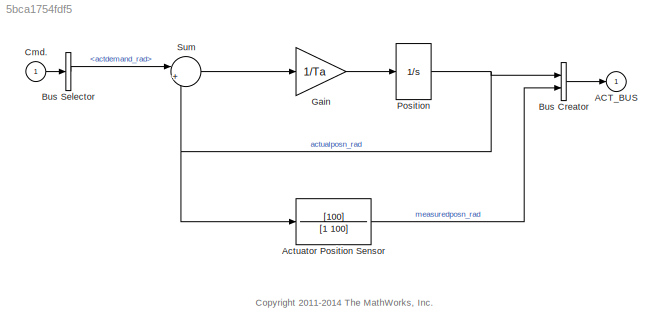
MODEL slx_5bca1754fdf5
KIND model
CONFIG AbsTol = auto
CONFIG FixedStep = auto
CONFIG MaxStep = 0.1
CONFIG MinStep = auto
CONFIG RelTol = 1e-3
CONFIG SampleTimeConstraint = Unconstrained
CONFIG Solver = ode45
CONFIG SolverMode = Auto
CONFIG SolverName = ode45
CONFIG StartTime = 0.0
CONFIG StopTime = 10.0
BLOCK [Outport] ACT_BUS
  BusOutputAsStruct = on
  IconDisplay = Port number
  InitialOutput = 0
  OutDataTypeStr = Bus: ACT_BUS
BLOCK [TransferFcn] Actuator Position Sensor
  Denominator = [1 100]
  Numerator = [100]
BLOCK [BusCreator] Bus Creator
  DisplayOption = bar
  Inputs = 2
  OutDataTypeStr = Bus: ACT_BUS
  Ports = [2, 1]
BLOCK [BusSelector] Bus Selector
  OutputSignals = actdemand_rad
  Ports = [1, 1]
BLOCK [Inport] Cmd.
  IconDisplay = Port number
  OutDataTypeStr = Bus: CONTROL_BUS
BLOCK [Gain] Gain
  Gain = 1/Ta
BLOCK [Integrator] Position
  LowerSaturationLimit = -pi*45/180
  Ports = [1, 1]
  UpperSaturationLimit = pi*45/180
BLOCK [Sum] Sum
  IconShape = round
  Inputs = |+-
  Ports = [2, 1]
ANNOTATION (root): <copyright redacted>
LINE Actuator Position Sensor:1 -> Bus Creator:2
LINE Bus Creator:1 -> ACT_BUS:1
LINE Bus Selector:1 -> Sum:1
LINE Cmd.:1 -> Bus Selector:1
LINE Gain:1 -> Position:1
NET Position:1 -> Actuator Position Sensor:1, Bus Creator:1, Sum:2
LINE Sum:1 -> Gain:1
note: NET lines group one-source signal fan-out (src -> all destinations, sorted); 1:1 wires keep LINE
